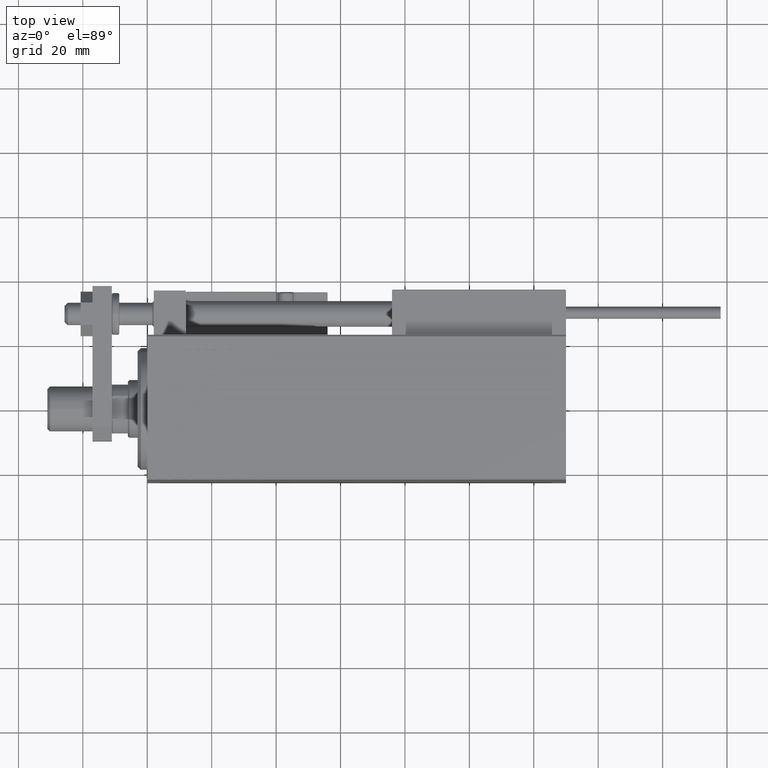
[diagram: clean part render]
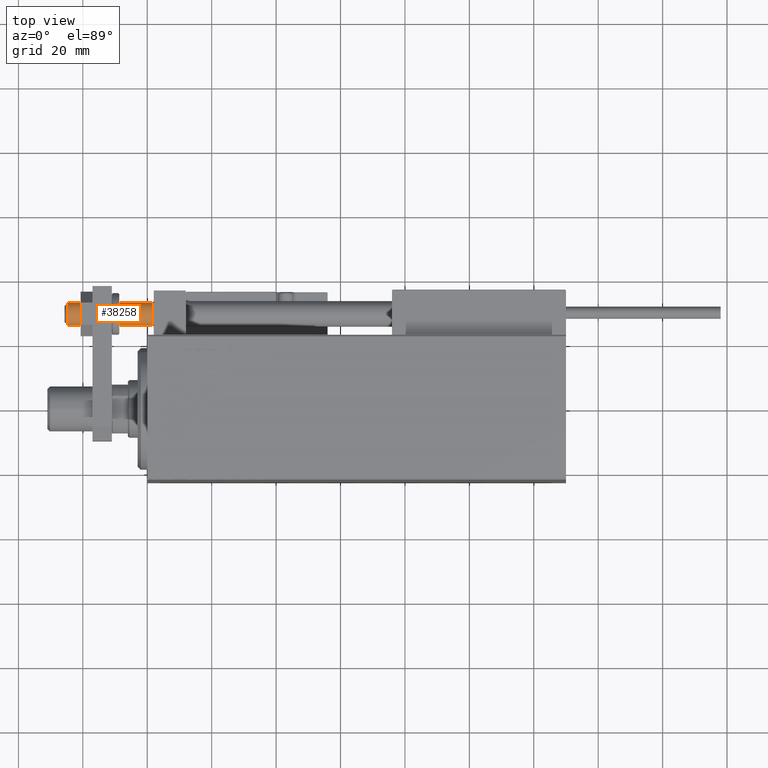
[diagram: same view with one face highlighted and labeled with its STEP entity id]
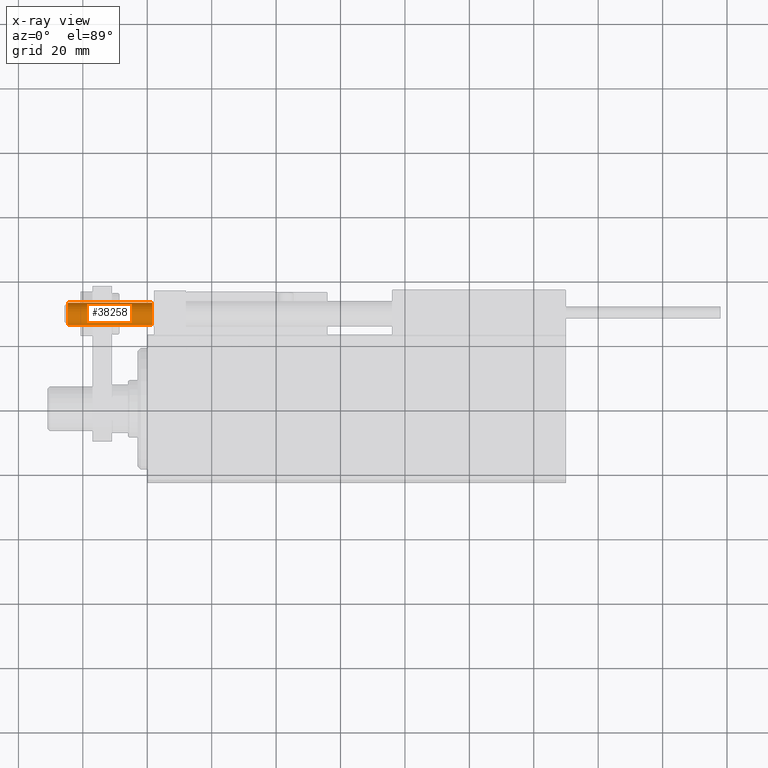
[diagram: x-ray of the same camera — body ghosted, the highlighted face saturated]
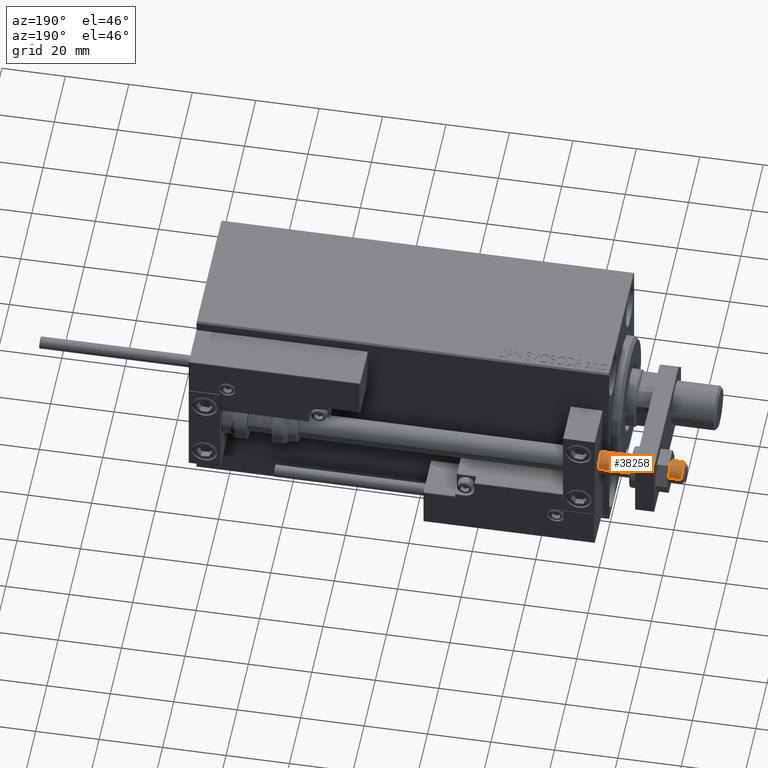
[diagram: same view with one face highlighted and labeled with its STEP entity id]
A machine part, top view. The second image highlights one B-rep face of the part: STEP entity #38258.
The next image is the same camera in x-ray: the body ghosted, the highlighted face saturated — about 0% of this face is hidden behind the body in this view.
A second angle (auxiliary view) of the same face is appended — the face is thin or edge-on in the first view.
In plain terms, the highlighted cylindrical surface (edge-blend (fillet) strip) has radius 3.5 mm, axis along (1, -0, -0).
Its self-contained STEP definition (entity closure, byte-faithful):
#1075 = VERTEX_POINT ( 'NONE', #33613 ) ;
#4099 = LINE ( 'NONE', #38278, #13146 ) ;
#8212 = AXIS2_PLACEMENT_3D ( 'NONE', #41281, #43525, #11724 ) ;
#9461 = CARTESIAN_POINT ( 'NONE',  ( 0.000000000000000000, 0.000000000000000000, 1.500000000000025535 ) ) ;
#9972 = DIRECTION ( 'NONE',  ( 1.000000000000000000, 0.000000000000000000, 0.000000000000000000 ) ) ;
#10434 = CARTESIAN_POINT ( 'NONE',  ( 3.500000000000000000, 0.000000000000000000, -24.70000000000004547 ) ) ;
#10508 = DIRECTION ( 'NONE',  ( -0.000000000000000000, -0.000000000000000000, 1.000000000000000000 ) ) ;
#10762 = AXIS2_PLACEMENT_3D ( 'NONE', #36836, #21962, #25551 ) ;
#11533 = CIRCLE ( 'NONE', #8212, 3.500000000000000000 ) ;
#11724 = DIRECTION ( 'NONE',  ( -1.000000000000000000, 0.000000000000000000, 0.000000000000000000 ) ) ;
#13146 = VECTOR ( 'NONE', #27238, 1000.000000000000000 ) ;
#14030 = EDGE_CURVE ( 'NONE', #27691, #1075, #49500, .T. ) ;
#14500 = CYLINDRICAL_SURFACE ( 'NONE', #10762, 3.500000000000000000 ) ;
#16554 = ORIENTED_EDGE ( 'NONE', *, *, #14030, .F. ) ;
#16841 = CIRCLE ( 'NONE', #34764, 3.500000000000000000 ) ;
#16865 = VECTOR ( 'NONE', #10508, 1000.000000000000000 ) ;
#18445 = VERTEX_POINT ( 'NONE', #23386 ) ;
#21962 = DIRECTION ( 'NONE',  ( -0.000000000000000000, -0.000000000000000000, 1.000000000000000000 ) ) ;
#23386 = CARTESIAN_POINT ( 'NONE',  ( -3.500000000000000000, 4.286263797015735609E-16, 1.500000000000025535 ) ) ;
#25183 = ORIENTED_EDGE ( 'NONE', *, *, #36329, .T. ) ;
#25551 = DIRECTION ( 'NONE',  ( 1.000000000000000000, 0.000000000000000000, 0.000000000000000000 ) ) ;
#27238 = DIRECTION ( 'NONE',  ( -0.000000000000000000, -0.000000000000000000, 1.000000000000000000 ) ) ;
#27691 = VERTEX_POINT ( 'NONE', #10434 ) ;
#30590 = ORIENTED_EDGE ( 'NONE', *, *, #47462, .T. ) ;
#32968 = EDGE_CURVE ( 'NONE', #27691, #37142, #11533, .T. ) ;
#33613 = CARTESIAN_POINT ( 'NONE',  ( 3.500000000000000000, 0.000000000000000000, 1.500000000000025535 ) ) ;
#34764 = AXIS2_PLACEMENT_3D ( 'NONE', #9461, #48733, #9972 ) ;
#36329 = EDGE_CURVE ( 'NONE', #37142, #18445, #4099, .T. ) ;
#36836 = CARTESIAN_POINT ( 'NONE',  ( 0.000000000000000000, 0.000000000000000000, -25.69999999999999929 ) ) ;
#37142 = VERTEX_POINT ( 'NONE', #39663 ) ;
#38258 = ADVANCED_FACE ( 'NONE', ( #45039 ), #14500, .T. ) ;
#38278 = CARTESIAN_POINT ( 'NONE',  ( -3.500000000000000000, 4.286263797015735609E-16, -25.69999999999999929 ) ) ;
#39663 = CARTESIAN_POINT ( 'NONE',  ( -3.500000000000000000, 4.286263797015735609E-16, -24.70000000000004547 ) ) ;
#41281 = CARTESIAN_POINT ( 'NONE',  ( 0.000000000000000000, 0.000000000000000000, -24.70000000000004547 ) ) ;
#42804 = ORIENTED_EDGE ( 'NONE', *, *, #32968, .T. ) ;
#43525 = DIRECTION ( 'NONE',  ( 0.000000000000000000, 0.000000000000000000, 1.000000000000000000 ) ) ;
#45039 = FACE_OUTER_BOUND ( 'NONE', #46277, .T. ) ;
#45655 = CARTESIAN_POINT ( 'NONE',  ( 3.500000000000000000, 0.000000000000000000, -25.69999999999999929 ) ) ;
#46277 = EDGE_LOOP ( 'NONE', ( #42804, #25183, #30590, #16554 ) ) ;
#47462 = EDGE_CURVE ( 'NONE', #18445, #1075, #16841, .T. ) ;
#48733 = DIRECTION ( 'NONE',  ( 0.000000000000000000, 0.000000000000000000, -1.000000000000000000 ) ) ;
#49500 = LINE ( 'NONE', #45655, #16865 ) ;